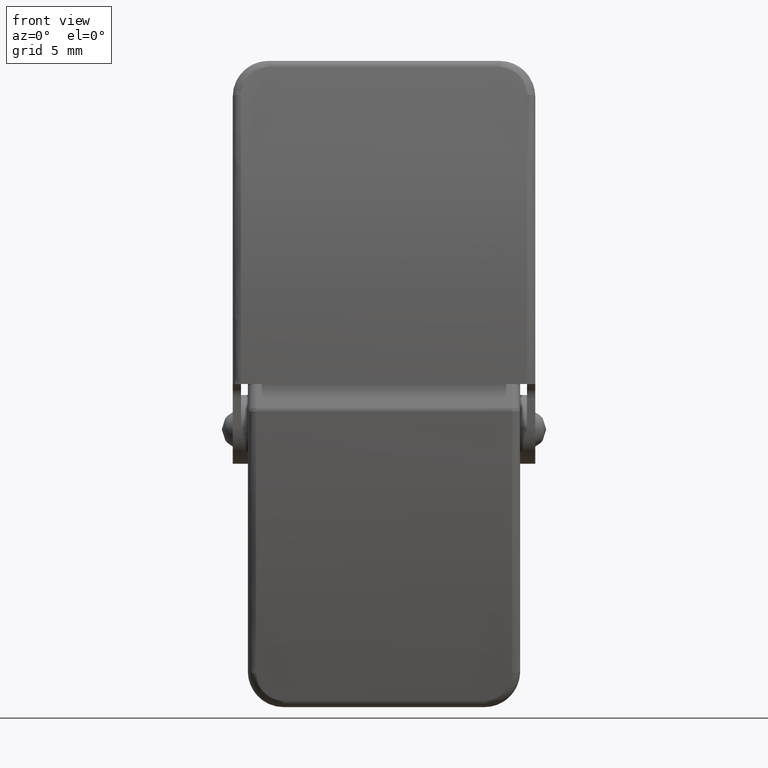
[diagram: clean part render]
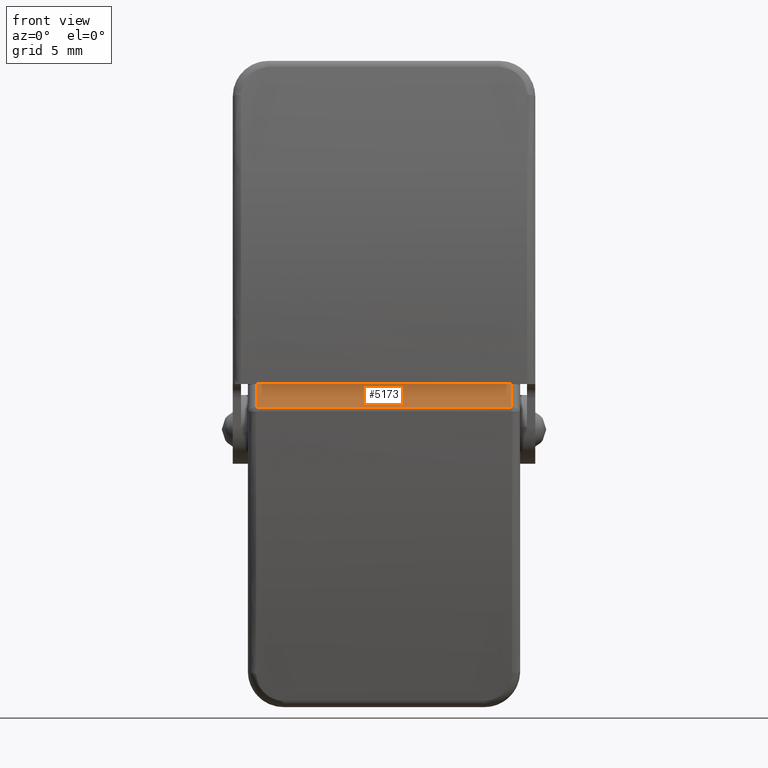
[diagram: same view with one face highlighted and labeled with its STEP entity id]
A machine part, front view. The second image highlights one B-rep face of the part: STEP entity #5173.
In plain terms, the highlighted face is a freeform B-spline surface patch.
Its self-contained STEP definition (entity closure, byte-faithful):
#2641=CARTESIAN_POINT('',(9.300000000002198,-7.000000000002120,7.300000000016130));
#2642=VERTEX_POINT('',#2641);
#2702=CARTESIAN_POINT('',(9.300000000002079,-7.927699673739999,5.585539934763831));
#2703=VERTEX_POINT('',#2702);
#2727=CARTESIAN_POINT('',(9.300000000002079,-7.927699673739999,5.585539934763831));
#2728=CARTESIAN_POINT('',(9.300000000002198,-7.000000000002120,7.300000000016130));
#2729=QUASI_UNIFORM_CURVE('',1,(#2727,#2728),.UNSPECIFIED.,.F.,.U.);
#2730=EDGE_CURVE('',#2703,#2642,#2729,.T.);
#2805=CARTESIAN_POINT('',(-9.299999999997901,-7.927699673739999,5.585539934763831));
#2806=VERTEX_POINT('',#2805);
#2828=CARTESIAN_POINT('',(-9.299999999997901,-7.927699673739999,5.585539934763831));
#2829=CARTESIAN_POINT('',(9.300000000002079,-7.927699673739999,5.585539934763831));
#2830=QUASI_UNIFORM_CURVE('',1,(#2828,#2829),.UNSPECIFIED.,.F.,.U.);
#2831=EDGE_CURVE('',#2806,#2703,#2830,.T.);
#3150=CARTESIAN_POINT('',(-9.299999999997979,-7.000000000002120,7.300000000016130));
#3151=VERTEX_POINT('',#3150);
#3173=CARTESIAN_POINT('',(-9.299999999997979,-7.000000000002120,7.300000000016130));
#3174=CARTESIAN_POINT('',(-9.299999999997901,-7.927699673739999,5.585539934763831));
#3175=QUASI_UNIFORM_CURVE('',1,(#3173,#3174),.UNSPECIFIED.,.F.,.U.);
#3176=EDGE_CURVE('',#3151,#2806,#3175,.T.);
#5141=CARTESIAN_POINT('',(9.300000000002198,-7.000000000002120,7.300000000016130));
#5142=CARTESIAN_POINT('',(-9.299999999997979,-7.000000000002120,7.300000000016130));
#5143=QUASI_UNIFORM_CURVE('',1,(#5141,#5142),.UNSPECIFIED.,.F.,.U.);
#5144=EDGE_CURVE('',#2642,#3151,#5143,.T.);
#5162=CARTESIAN_POINT('',(-10.229070138551069,-6.953661316011170,7.385637437893773));
#5163=CARTESIAN_POINT('',(-10.229070138551069,-7.974038299670985,5.499902604185463));
#5164=CARTESIAN_POINT('',(10.229070471149210,-6.953661316011170,7.385637437893773));
#5165=CARTESIAN_POINT('',(10.229070471149210,-7.974038299670985,5.499902604185463));
#5166=B_SPLINE_SURFACE_WITH_KNOTS('',1,1,((#5162,#5164),(#5163,#5165)),.UNSPECIFIED.,.F.,.F.,.U.,(2,2),(2,2),(0.0,2.144100056397464),(0.0,20.458140609700280),.UNSPECIFIED.);
#5167=ORIENTED_EDGE('',*,*,#2831,.T.);
#5168=ORIENTED_EDGE('',*,*,#2730,.T.);
#5169=ORIENTED_EDGE('',*,*,#5144,.T.);
#5170=ORIENTED_EDGE('',*,*,#3176,.T.);
#5171=EDGE_LOOP('',(#5167,#5168,#5169,#5170));
#5172=FACE_OUTER_BOUND('',#5171,.T.);
#5173=ADVANCED_FACE('',(#5172),#5166,.T.);